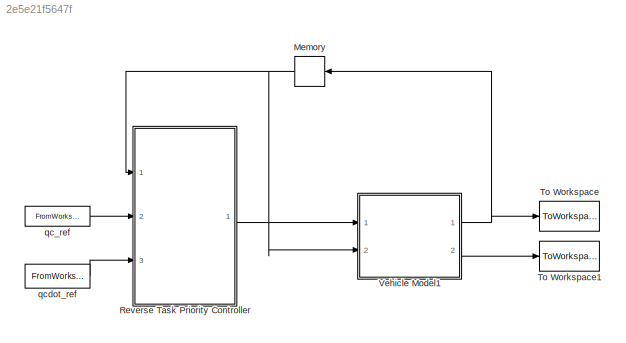
MODEL slx_2e5e21f5647f
KIND model
CONFIG AbsTol = auto
CONFIG EnableMultiTasking = off
CONFIG FixedStep = .05
CONFIG MaxStep = auto
CONFIG MinStep = auto
CONFIG RelTol = 1e-3
CONFIG SampleTimeConstraint = Unconstrained
CONFIG Solver = ode1
CONFIG SolverName = ode1
CONFIG StartTime = 0.0
CONFIG StopTime = Tsim
BLOCK [Memory] Memory
  InitialCondition = starts
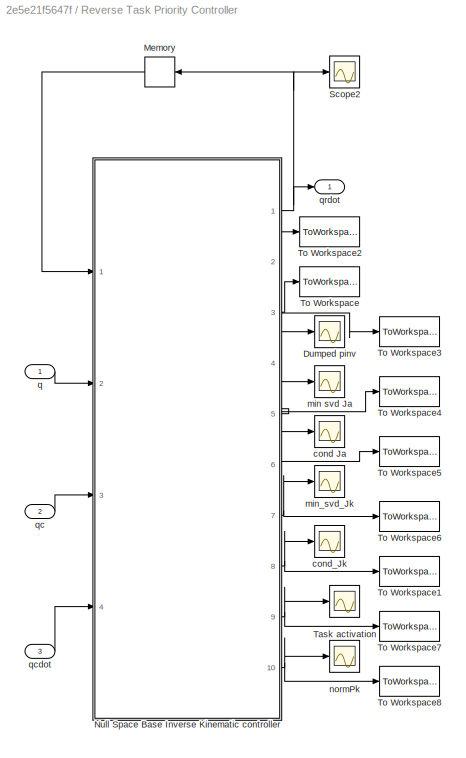
BLOCK [SubSystem] Reverse Task Priority Controller
  Ports = [3, 1]
  RequestExecContextInheritance = off
BLOCK [Scope] Reverse Task Priority Controller/Dumped pinv
  Floating = off
  NumInputPorts = 1
  Ports = [1]
  ScopeSpecificationString = Simulink.scopes.TimeScopeBlockCfg('CurrentConfiguration', extmgr.ConfigurationSet(extmgr.Configuration('Core','General UI',true),extmgr.Configuration('Core','Source UI',true),extmgr.Configuration('Sources','WiredSimulink',true,'DataLoggingVariableName','ScopeData1'),extmgr.Configuration('Visuals','Time Domain',true,'SerializedDisplays',{struct('MinYLimReal','-0.375','MaxYLimReal','3.375','YLabelRe...<+1750ch>
BLOCK [Memory] Reverse Task Priority Controller/Memory
  InitialCondition = zeros(2*n_agents,1)
  LinearizeAsDelay = on
  LinearizeMemory = on
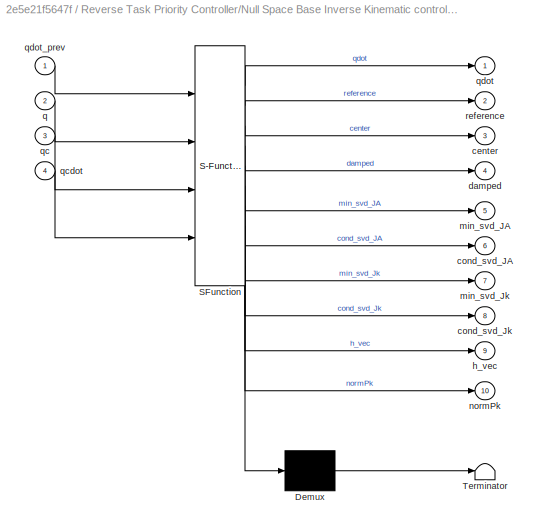
BLOCK [SubSystem] Reverse Task Priority Controller/Null Space Base Inverse Kinematic controller
  ErrorFcn = Stateflow.Translate.translate
  PermitHierarchicalResolution = ExplicitOnly
  Ports = [4, 10]
  RequestExecContextInheritance = off
  SFBlockType = MATLAB Function
  TreatAsAtomicUnit = on
BLOCK [Demux] Reverse Task Priority Controller/Null Space Base Inverse Kinematic controller/ Demux 
  Outputs = 1
  Ports = [1, 1]
BLOCK [S-Function] Reverse Task Priority Controller/Null Space Base Inverse Kinematic controller/ SFunction 
  EnableBusSupport = on
  FunctionName = sf_sfun
  Parameters = RTPflag,dsafe,dsafe_ths,epsilon_damp,ff,k_vo,l,lambda_damp,pobs,tol
  PortCounts = [4 11]
  Ports = [4, 11]
  SFcnIsStateOwnerBlock = off
  SFunctionDeploymentMode = off
  Tag = Stateflow S-Function entrapment_multi 12
BLOCK [Terminator] Reverse Task Priority Controller/Null Space Base Inverse Kinematic controller/ Terminator 
BLOCK [Outport] Reverse Task Priority Controller/Null Space Base Inverse Kinematic controller/center
  IconDisplay = Port number
  Port = 3
BLOCK [Outport] Reverse Task Priority Controller/Null Space Base Inverse Kinematic controller/cond_svd_JA
  IconDisplay = Port number
  Port = 6
BLOCK [Outport] Reverse Task Priority Controller/Null Space Base Inverse Kinematic controller/cond_svd_Jk
  IconDisplay = Port number
  Port = 8
BLOCK [Outport] Reverse Task Priority Controller/Null Space Base Inverse Kinematic controller/damped
  IconDisplay = Port number
  Port = 4
BLOCK [Outport] Reverse Task Priority Controller/Null Space Base Inverse Kinematic controller/h_vec
  IconDisplay = Port number
  Port = 9
BLOCK [Outport] Reverse Task Priority Controller/Null Space Base Inverse Kinematic controller/min_svd_JA
  IconDisplay = Port number
  Port = 5
BLOCK [Outport] Reverse Task Priority Controller/Null Space Base Inverse Kinematic controller/min_svd_Jk
  IconDisplay = Port number
  Port = 7
BLOCK [Outport] Reverse Task Priority Controller/Null Space Base Inverse Kinematic controller/normPk
  IconDisplay = Port number
  Port = 10
BLOCK [Inport] Reverse Task Priority Controller/Null Space Base Inverse Kinematic controller/q
  IconDisplay = Port number
  Port = 2
BLOCK [Inport] Reverse Task Priority Controller/Null Space Base Inverse Kinematic controller/qc
  IconDisplay = Port number
  Port = 3
BLOCK [Inport] Reverse Task Priority Controller/Null Space Base Inverse Kinematic controller/qcdot
  IconDisplay = Port number
  Port = 4
BLOCK [Outport] Reverse Task Priority Controller/Null Space Base Inverse Kinematic controller/qdot
  IconDisplay = Port number
BLOCK [Inport] Reverse Task Priority Controller/Null Space Base Inverse Kinematic controller/qdot_prev
  IconDisplay = Port number
BLOCK [Outport] Reverse Task Priority Controller/Null Space Base Inverse Kinematic controller/reference
  IconDisplay = Port number
  Port = 2
BLOCK [Scope] Reverse Task Priority Controller/Scope2
  Floating = off
  NumInputPorts = 1
  Ports = [1]
  ScopeSpecificationString = Simulink.scopes.TimeScopeBlockCfg('CurrentConfiguration', extmgr.ConfigurationSet(extmgr.Configuration('Core','General UI',true),extmgr.Configuration('Core','Source UI',true),extmgr.Configuration('Sources','WiredSimulink',true,'DataLoggingVariableName','ScopeData1'),extmgr.Configuration('Visuals','Time Domain',true,'SerializedDisplays',{struct('MinYLimReal','-2.65413','MaxYLimReal','4.30846','YLab...<+2191ch>
BLOCK [Scope] Reverse Task Priority Controller/Task activation
  Floating = off
  NumInputPorts = 1
  Ports = [1]
  ScopeSpecificationString = Simulink.scopes.TimeScopeBlockCfg('CurrentConfiguration', extmgr.ConfigurationSet(extmgr.Configuration('Core','General UI',true),extmgr.Configuration('Core','Source UI',true),extmgr.Configuration('Sources','WiredSimulink',true,'DataLoggingVariableName','ScopeData1'),extmgr.Configuration('Visuals','Time Domain',true,'SerializedDisplays',{struct('MinYLimReal','-0.125','MaxYLimReal','1.125','YLabelRe...<+2933ch>
BLOCK [ToWorkspace] Reverse Task Priority Controller/To Workspace
  FixptAsFi = on
  MaxDataPoints = inf
  Ports = [1]
  SampleTime = -1
  Save2DSignal = 3-D array (concatenate along third dimension)
  VariableName = center
BLOCK [ToWorkspace] Reverse Task Priority Controller/To Workspace1
  FixptAsFi = on
  MaxDataPoints = inf
  Ports = [1]
  SampleTime = -1
  Save2DSignal = 3-D array (concatenate along third dimension)
  SaveFormat = Structure With Time
  VariableName = cond_Jk
BLOCK [ToWorkspace] Reverse Task Priority Controller/To Workspace2
  FixptAsFi = on
  MaxDataPoints = inf
  Ports = [1]
  SampleTime = -1
  Save2DSignal = 3-D array (concatenate along third dimension)
  SaveFormat = Structure With Time
  VariableName = reference
BLOCK [ToWorkspace] Reverse Task Priority Controller/To Workspace3
  FixptAsFi = on
  MaxDataPoints = inf
  Ports = [1]
  SampleTime = -1
  Save2DSignal = 3-D array (concatenate along third dimension)
  SaveFormat = Structure With Time
  VariableName = dumped
BLOCK [ToWorkspace] Reverse Task Priority Controller/To Workspace4
  FixptAsFi = on
  MaxDataPoints = inf
  Ports = [1]
  SampleTime = -1
  Save2DSignal = 3-D array (concatenate along third dimension)
  SaveFormat = Structure With Time
  VariableName = min_JA
BLOCK [ToWorkspace] Reverse Task Priority Controller/To Workspace5
  FixptAsFi = on
  MaxDataPoints = inf
  Ports = [1]
  SampleTime = -1
  Save2DSignal = 3-D array (concatenate along third dimension)
  SaveFormat = Structure With Time
  VariableName = cond_JA
BLOCK [ToWorkspace] Reverse Task Priority Controller/To Workspace6
  FixptAsFi = on
  MaxDataPoints = inf
  Ports = [1]
  SampleTime = -1
  Save2DSignal = 3-D array (concatenate along third dimension)
  SaveFormat = Structure With Time
  VariableName = min_Jk
BLOCK [ToWorkspace] Reverse Task Priority Controller/To Workspace7
  FixptAsFi = on
  MaxDataPoints = inf
  Ports = [1]
  SampleTime = -1
  Save2DSignal = 3-D array (concatenate along third dimension)
  SaveFormat = Structure With Time
  VariableName = h_vec
BLOCK [ToWorkspace] Reverse Task Priority Controller/To Workspace8
  FixptAsFi = on
  MaxDataPoints = inf
  Ports = [1]
  SampleTime = -1
  Save2DSignal = 3-D array (concatenate along third dimension)
  SaveFormat = Structure With Time
  VariableName = normPk
BLOCK [Scope] Reverse Task Priority Controller/cond Ja
  Floating = off
  NumInputPorts = 1
  Ports = [1]
  ScopeSpecificationString = Simulink.scopes.TimeScopeBlockCfg('CurrentConfiguration', extmgr.ConfigurationSet(extmgr.Configuration('Core','General UI',true),extmgr.Configuration('Core','Source UI',true),extmgr.Configuration('Sources','WiredSimulink',true,'DataLoggingVariableName','ScopeData2'),extmgr.Configuration('Visuals','Time Domain',true,'SerializedDisplays',{struct('MinYLimReal','-1.00000','MaxYLimReal','1.00000','YLab...<+1573ch>
BLOCK [Scope] Reverse Task Priority Controller/cond_Jk
  Floating = off
  NumInputPorts = 1
  Ports = [1]
  ScopeSpecificationString = Simulink.scopes.TimeScopeBlockCfg('CurrentConfiguration', extmgr.ConfigurationSet(extmgr.Configuration('Core','General UI',true),extmgr.Configuration('Core','Source UI',true),extmgr.Configuration('Sources','WiredSimulink',true,'DataLoggingVariableName','ScopeData2'),extmgr.Configuration('Visuals','Time Domain',true,'SerializedDisplays',{struct('MinYLimReal','-0.125','MaxYLimReal','1.125','YLabelRe...<+1561ch>
BLOCK [Scope] Reverse Task Priority Controller/min svd Ja
  Floating = off
  NumInputPorts = 1
  Ports = [1]
  ScopeSpecificationString = Simulink.scopes.TimeScopeBlockCfg('CurrentConfiguration', extmgr.ConfigurationSet(extmgr.Configuration('Core','General UI',true),extmgr.Configuration('Core','Source UI',true),extmgr.Configuration('Sources','WiredSimulink',true,'DataLoggingVariableName','ScopeData1'),extmgr.Configuration('Visuals','Time Domain',true,'SerializedDisplays',{struct('MinYLimReal','-1.25','MaxYLimReal','11.25','YLabelRea...<+1556ch>
BLOCK [Scope] Reverse Task Priority Controller/min_svd_Jk
  Floating = off
  NumInputPorts = 1
  Ports = [1]
  ScopeSpecificationString = Simulink.scopes.TimeScopeBlockCfg('CurrentConfiguration', extmgr.ConfigurationSet(extmgr.Configuration('Core','General UI',true),extmgr.Configuration('Core','Source UI',true),extmgr.Configuration('Sources','WiredSimulink',true,'DataLoggingVariableName','ScopeData1'),extmgr.Configuration('Visuals','Time Domain',true,'SerializedDisplays',{struct('MinYLimReal','-1.125','MaxYLimReal','10.125','YLabelR...<+1512ch>
BLOCK [Scope] Reverse Task Priority Controller/normPk
  Floating = off
  NumInputPorts = 1
  Ports = [1]
  ScopeSpecificationString = Simulink.scopes.TimeScopeBlockCfg('CurrentConfiguration', extmgr.ConfigurationSet(extmgr.Configuration('Core','General UI',true),extmgr.Configuration('Core','Source UI',true),extmgr.Configuration('Sources','WiredSimulink',true,'DataLoggingVariableName','ScopeData2'),extmgr.Configuration('Visuals','Time Domain',true,'SerializedDisplays',{struct('MinYLimReal','0.91392','MaxYLimReal','1.23107','YLabe...<+1517ch>
BLOCK [Inport] Reverse Task Priority Controller/q
  IconDisplay = Port number
BLOCK [Inport] Reverse Task Priority Controller/qc
  IconDisplay = Port number
  Port = 2
BLOCK [Inport] Reverse Task Priority Controller/qcdot 
  IconDisplay = Port number
  Port = 3
BLOCK [Outport] Reverse Task Priority Controller/qrdot
  IconDisplay = Port number
BLOCK [ToWorkspace] To Workspace
  FixptAsFi = on
  MaxDataPoints = inf
  Ports = [1]
  SampleTime = -1
  Save2DSignal = 3-D array (concatenate along third dimension)
  SaveFormat = Structure With Time
  VariableName = q
BLOCK [ToWorkspace] To Workspace1
  FixptAsFi = on
  MaxDataPoints = inf
  Ports = [1]
  SampleTime = -1
  Save2DSignal = 3-D array (concatenate along third dimension)
  SaveFormat = Structure With Time
  VariableName = qdot
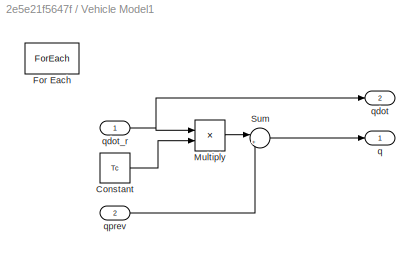
BLOCK [SubSystem] Vehicle Model1
  Ports = [2, 2]
  RequestExecContextInheritance = off
  TreatAsAtomicUnit = on
BLOCK [Constant] Vehicle Model1/Constant
  Value = Tc
BLOCK [ForEach] Vehicle Model1/For Each
  DisableCoverage = on
  IndexMode = One-based
  Ports = []
BLOCK [Product] Vehicle Model1/Multiply
  InputSameDT = off
  OutDataTypeStr = Inherit: Inherit via internal rule
  Ports = [2, 1]
  RndMeth = Floor
  SaturateOnIntegerOverflow = off
BLOCK [Sum] Vehicle Model1/Sum
  IconShape = round
  InputSameDT = off
  Inputs = |++
  OutDataTypeStr = Inherit: Inherit via internal rule
  Ports = [2, 1]
  SaturateOnIntegerOverflow = off
BLOCK [Outport] Vehicle Model1/q
  ConcatenationDimension = 1
  IconDisplay = Port number
BLOCK [Outport] Vehicle Model1/qdot
  ConcatenationDimension = 1
  IconDisplay = Port number
  Port = 2
BLOCK [Inport] Vehicle Model1/qdot_r
  IconDisplay = Port number
  Partition = on
  PartitionDimension = 1
  PartitionOffset = 0
  PartitionWidth = 2
BLOCK [Inport] Vehicle Model1/qprev
  IconDisplay = Port number
  Partition = on
  PartitionDimension = 1
  PartitionOffset = 0
  PartitionWidth = 2
  Port = 2
BLOCK [FromWorkspace] qc_ref
  SampleTime = Tc
  VariableName = qc_ref
  ZeroCross = on
BLOCK [FromWorkspace] qcdot_ref
  SampleTime = Tc
  VariableName = qcdot_ref
  ZeroCross = on
NET Memory:1 -> Reverse Task Priority Controller:1, Vehicle Model1:2
LINE Reverse Task Priority Controller/Memory:1 -> Reverse Task Priority Controller/Null Space Base Inverse Kinematic controller:1
NET Reverse Task Priority Controller/Null Space Base Inverse Kinematic controller:1 -> Reverse Task Priority Controller/Memory:1, Reverse Task Priority Controller/Scope2:1, Reverse Task Priority Controller/qrdot:1
NET Reverse Task Priority Controller/Null Space Base Inverse Kinematic controller:10 -> Reverse Task Priority Controller/To Workspace8:1, Reverse Task Priority Controller/normPk:1
LINE Reverse Task Priority Controller/Null Space Base Inverse Kinematic controller:2 -> Reverse Task Priority Controller/To Workspace2:1
LINE Reverse Task Priority Controller/Null Space Base Inverse Kinematic controller:3 -> Reverse Task Priority Controller/To Workspace:1
NET Reverse Task Priority Controller/Null Space Base Inverse Kinematic controller:4 -> Reverse Task Priority Controller/Dumped pinv:1, Reverse Task Priority Controller/To Workspace3:1
NET Reverse Task Priority Controller/Null Space Base Inverse Kinematic controller:5 -> Reverse Task Priority Controller/To Workspace4:1, Reverse Task Priority Controller/min svd Ja:1
NET Reverse Task Priority Controller/Null Space Base Inverse Kinematic controller:6 -> Reverse Task Priority Controller/To Workspace5:1, Reverse Task Priority Controller/cond Ja:1
NET Reverse Task Priority Controller/Null Space Base Inverse Kinematic controller:7 -> Reverse Task Priority Controller/To Workspace6:1, Reverse Task Priority Controller/min_svd_Jk:1
NET Reverse Task Priority Controller/Null Space Base Inverse Kinematic controller:8 -> Reverse Task Priority Controller/To Workspace1:1, Reverse Task Priority Controller/cond_Jk:1
NET Reverse Task Priority Controller/Null Space Base Inverse Kinematic controller:9 -> Reverse Task Priority Controller/Task activation:1, Reverse Task Priority Controller/To Workspace7:1
LINE Reverse Task Priority Controller/q:1 -> Reverse Task Priority Controller/Null Space Base Inverse Kinematic controller:2
LINE Reverse Task Priority Controller/qc:1 -> Reverse Task Priority Controller/Null Space Base Inverse Kinematic controller:3
LINE Reverse Task Priority Controller/qcdot :1 -> Reverse Task Priority Controller/Null Space Base Inverse Kinematic controller:4
LINE Reverse Task Priority Controller:1 -> Vehicle Model1:1
LINE Vehicle Model1/Constant:1 -> Vehicle Model1/Multiply:2
LINE Vehicle Model1/Multiply:1 -> Vehicle Model1/Sum:1
LINE Vehicle Model1/Sum:1 -> Vehicle Model1/q:1
NET Vehicle Model1/qdot_r:1 -> Vehicle Model1/Multiply:1, Vehicle Model1/qdot:1
LINE Vehicle Model1/qprev:1 -> Vehicle Model1/Sum:2
NET Vehicle Model1:1 -> Memory:1, To Workspace:1
LINE Vehicle Model1:2 -> To Workspace1:1
LINE qc_ref:1 -> Reverse Task Priority Controller:2
LINE qcdot_ref:1 -> Reverse Task Priority Controller:3
note: NET lines group one-source signal fan-out (src -> all destinations, sorted); 1:1 wires keep LINE
CHART Reverse Task Priority
Controller/Null Space Base Inverse Kinematic 
controller states=1 transitions=1
  STATE_LABEL 'eML_blk_kernel()'
  STATE_LABEL 'SCRIPT:\nfunction [qdot, reference, center, damped, min_svd_JA, cond_svd_JA, min_svd_Jk, cond_svd_Jk, h_vec, normPk] = NSB_IK_controller(qdot_prev, q, qc, qcdot, dsafe, dsafe_ths, pobs, RTPflag, l, epsilon_damp, k_vo, lambda_damp, ff, tol)\n%% Initialization\nn_agents = length(q)/2; % 2: (x y) for each agent - hyph. all homogeneous\nn_tasks = 2; %number of tasks which may be activated\nN = length(q);\n\n...<+3608ch>'
